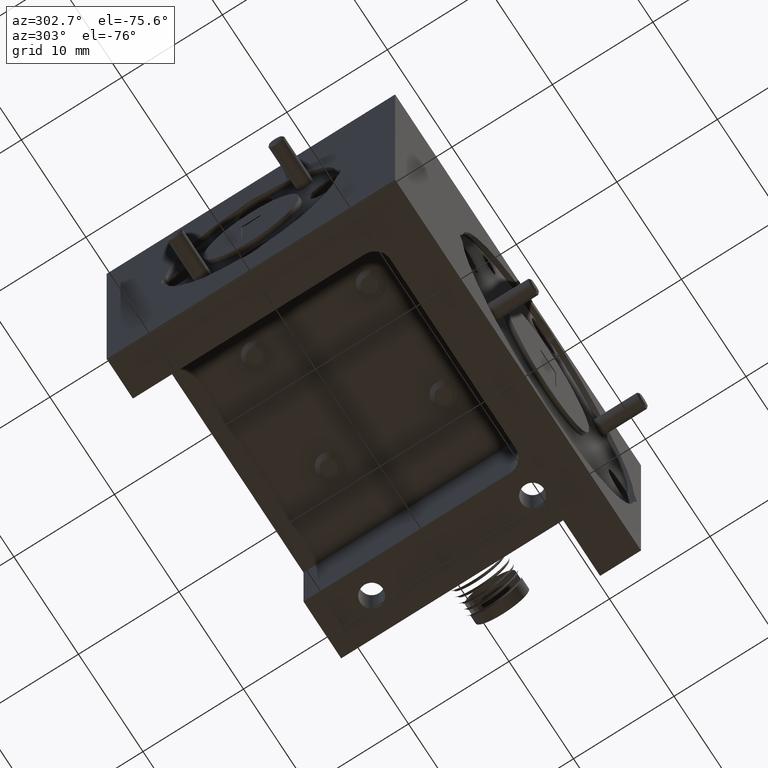
[diagram: clean part render]
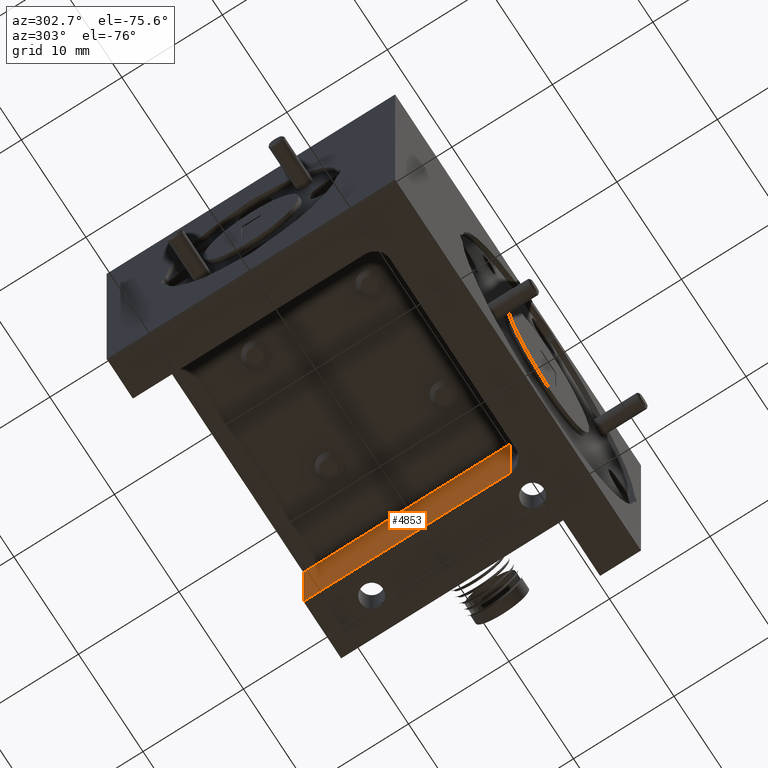
[diagram: same view with one face highlighted and labeled with its STEP entity id]
A machine part, auxiliary view. The second image highlights one B-rep face of the part: STEP entity #4853.
In plain terms, the highlighted planar face has unit normal (-1, 0, 0).
Its self-contained STEP definition (entity closure, byte-faithful):
#393 = CARTESIAN_POINT ( 'NONE',  ( 1.044999999999999900, -0.3450000000000000800, -0.1799999999999999400 ) ) ;
#632 = PLANE ( 'NONE',  #12533 ) ;
#748 = VECTOR ( 'NONE', #9774, 39.37007874015748100 ) ;
#1676 = CARTESIAN_POINT ( 'NONE',  ( 1.044999999999999900, 0.4650000000000000800, -0.1799999999999999400 ) ) ;
#1939 = VERTEX_POINT ( 'NONE', #11783 ) ;
#2547 = LINE ( 'NONE', #4004, #11100 ) ;
#3495 = CARTESIAN_POINT ( 'NONE',  ( 1.044999999999999900, -0.3450000000000000800, -6.120049076715396700E-017 ) ) ;
#4004 = CARTESIAN_POINT ( 'NONE',  ( 1.044999999999999900, -0.4050000000000000300, -0.1799999999999999400 ) ) ;
#4612 = DIRECTION ( 'NONE',  ( -0.0000000000000000000, -0.0000000000000000000, 1.000000000000000000 ) ) ;
#4853 = ADVANCED_FACE ( 'NONE', ( #13275 ), #632, .T. ) ;
#5417 = VECTOR ( 'NONE', #4612, 39.37007874015748100 ) ;
#6813 = LINE ( 'NONE', #3495, #13214 ) ;
#7051 = EDGE_CURVE ( 'NONE', #7232, #9198, #2547, .T. ) ;
#7232 = VERTEX_POINT ( 'NONE', #393 ) ;
#7590 = ORIENTED_EDGE ( 'NONE', *, *, #9484, .T. ) ;
#8507 = CARTESIAN_POINT ( 'NONE',  ( 1.044999999999999900, -0.3450000000000000300, -0.5649999999999999500 ) ) ;
#9198 = VERTEX_POINT ( 'NONE', #1676 ) ;
#9484 = EDGE_CURVE ( 'NONE', #11506, #7232, #6813, .T. ) ;
#9774 = DIRECTION ( 'NONE',  ( -0.0000000000000000000, 1.000000000000000000, -0.0000000000000000000 ) ) ;
#9889 = ORIENTED_EDGE ( 'NONE', *, *, #15574, .F. ) ;
#10104 = ORIENTED_EDGE ( 'NONE', *, *, #7051, .T. ) ;
#10437 = DIRECTION ( 'NONE',  ( 0.0000000000000000000, 0.0000000000000000000, 1.000000000000000000 ) ) ;
#11100 = VECTOR ( 'NONE', #13503, 39.37007874015748100 ) ;
#11252 = CARTESIAN_POINT ( 'NONE',  ( 1.044999999999999900, 0.4650000000000000800, 0.5649999999999997200 ) ) ;
#11429 = EDGE_CURVE ( 'NONE', #1939, #9198, #12676, .T. ) ;
#11506 = VERTEX_POINT ( 'NONE', #8507 ) ;
#11783 = CARTESIAN_POINT ( 'NONE',  ( 1.044999999999999900, 0.4650000000000000800, -0.5649999999999999500 ) ) ;
#11987 = ORIENTED_EDGE ( 'NONE', *, *, #11429, .F. ) ;
#12533 = AXIS2_PLACEMENT_3D ( 'NONE', #13132, #17105, #10437 ) ;
#12676 = LINE ( 'NONE', #11252, #5417 ) ;
#13132 = CARTESIAN_POINT ( 'NONE',  ( 1.044999999999999900, 0.0000000000000000000, 0.0000000000000000000 ) ) ;
#13169 = LINE ( 'NONE', #13868, #748 ) ;
#13214 = VECTOR ( 'NONE', #14317, 39.37007874015748100 ) ;
#13275 = FACE_OUTER_BOUND ( 'NONE', #16145, .T. ) ;
#13503 = DIRECTION ( 'NONE',  ( 0.0000000000000000000, 1.000000000000000000, 0.0000000000000000000 ) ) ;
#13868 = CARTESIAN_POINT ( 'NONE',  ( 1.044999999999999900, 0.4650000000000000800, -0.5649999999999999500 ) ) ;
#14317 = DIRECTION ( 'NONE',  ( 0.0000000000000000000, -1.773927268613157900E-016, 1.000000000000000000 ) ) ;
#15574 = EDGE_CURVE ( 'NONE', #11506, #1939, #13169, .T. ) ;
#16145 = EDGE_LOOP ( 'NONE', ( #9889, #7590, #10104, #11987 ) ) ;
#17105 = DIRECTION ( 'NONE',  ( -1.000000000000000000, 0.0000000000000000000, 0.0000000000000000000 ) ) ;